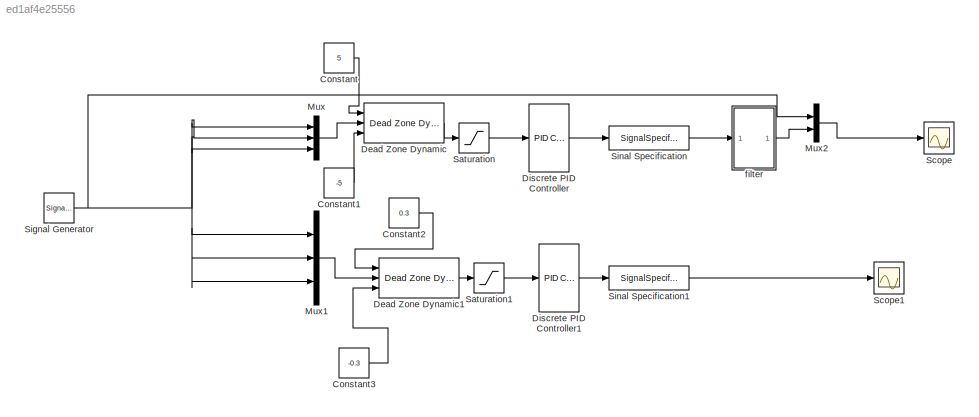
MODEL slx_ed1af4e25556
KIND model
CONFIG AbsTol = auto
CONFIG EnableMultiTasking = off
CONFIG FixedStep = 0.002
CONFIG MaxStep = auto
CONFIG MinStep = auto
CONFIG RelTol = 1e-3
CONFIG SampleTimeConstraint = Unconstrained
CONFIG Solver = FixedStepDiscrete
CONFIG SolverName = FixedStepDiscrete
CONFIG StartTime = 0.0
CONFIG StopTime = 10
BLOCK [Constant] Constant
  Value = 5
BLOCK [Constant] Constant1
  Value = -5
BLOCK [Constant] Constant2
  Value = 0.3
BLOCK [Constant] Constant3
  Value = -0.3
BLOCK [Reference] Dead Zone Dynamic  REF=simulink/Discontinuities/Dead Zone
Dynamic
  Ports = [3, 1]
  SourceBlock = simulink/Discontinuities/Dead Zone\nDynamic
  SourceType = Dead Zone Dynamic
BLOCK [Reference] Dead Zone Dynamic1  REF=simulink/Discontinuities/Dead Zone
Dynamic
  Ports = [3, 1]
  SourceBlock = simulink/Discontinuities/Dead Zone\nDynamic
  SourceType = Dead Zone Dynamic
BLOCK [Reference] Discrete PID Controller  REF=simulink/Continuous/PID Controller
  Ports = [1, 1]
  SourceBlock = simulink/Continuous/PID Controller
  SourceType = PID 1dof
BLOCK [Reference] Discrete PID Controller1  REF=simulink/Continuous/PID Controller
  Ports = [1, 1]
  SourceBlock = simulink/Continuous/PID Controller
  SourceType = PID 1dof
BLOCK [Mux] Mux
  DisplayOption = bar
  Inputs = 3
  Ports = [3, 1]
BLOCK [Mux] Mux1
  DisplayOption = bar
  Inputs = 3
  Ports = [3, 1]
BLOCK [Mux] Mux2
  DisplayOption = bar
  Inputs = 2
  Ports = [2, 1]
BLOCK [Saturate] Saturation
  InputPortMap = u0
  LowerLimit = -40
  Ports = [1, 1]
  UpperLimit = 40
BLOCK [Saturate] Saturation1
  InputPortMap = u0
  LowerLimit = -3
  Ports = [1, 1]
  UpperLimit = 3
BLOCK [Scope] Scope
  NumInputPorts = 1
  Ports = [1]
  ScopeSpecificationString = Simulink.scopes.TimeScopeBlockCfg('CurrentConfiguration', extmgr.ConfigurationSet(extmgr.Configuration('Core','General UI',true),extmgr.Configuration('Core','Source UI',true),extmgr.Configuration('Sources','WiredSimulink',true),extmgr.Configuration('Visuals','Time Domain',true,'SerializedDisplays',{struct('MinYLimReal','-12.5','MaxYLimReal','12.5','YLabelReal','','MinYLimMag','0.00000','MaxYLimMag...<+1465ch>
BLOCK [Scope] Scope1
  NumInputPorts = 1
  Ports = [1]
  ScopeSpecificationString = Simulink.scopes.TimeScopeBlockCfg('CurrentConfiguration', extmgr.ConfigurationSet(extmgr.Configuration('Core','General UI',true),extmgr.Configuration('Core','Source UI',true),extmgr.Configuration('Sources','WiredSimulink',true,'DataLoggingVariableName','ScopeData1'),extmgr.Configuration('Visuals','Time Domain',true,'SerializedDisplays',{struct('MinYLimReal','-12.5','MaxYLimReal','12.5','YLabelReal...<+1504ch>
BLOCK [SignalGenerator] Signal Generator
  Amplitude = 10
  Ports = [0, 1]
  Units = rad/sec
  WaveForm = square
BLOCK [SignalSpecification] Sinal Specification
  Dimensions = 3
  OutDataTypeStr = double
BLOCK [SignalSpecification] Sinal Specification1
  Dimensions = 3
  OutDataTypeStr = double
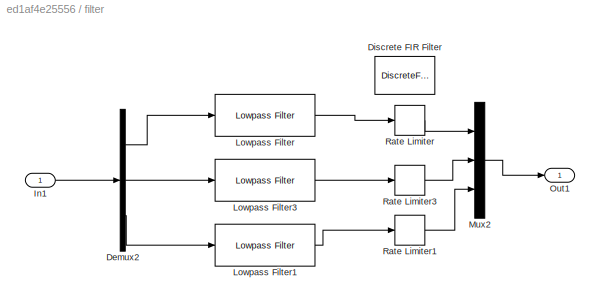
BLOCK [SubSystem] filter
  Ports = [1, 1]
  RequestExecContextInheritance = off
  Variant = off
BLOCK [Demux] filter/Demux2
  DisplayOption = bar
  Outputs = 3
  Ports = [1, 3]
BLOCK [DiscreteFir] filter/Discrete FIR Filter
  InputPortMap = u0
  OutputPortMap = o0
  Ports = [1, 1]
BLOCK [Inport] filter/In1
  IconDisplay = Port number
BLOCK [Reference] filter/Lowpass Filter  REF=dspfdesign/Lowpass Filter
  Ports = [1, 1]
  SourceBlock = dspfdesign/Lowpass Filter
  SourceType = dsp.LowpassFilter
BLOCK [Reference] filter/Lowpass Filter1  REF=dspfdesign/Lowpass Filter
  Ports = [1, 1]
  SourceBlock = dspfdesign/Lowpass Filter
  SourceType = dsp.LowpassFilter
BLOCK [Reference] filter/Lowpass Filter3  REF=dspfdesign/Lowpass Filter
  Ports = [1, 1]
  SourceBlock = dspfdesign/Lowpass Filter
  SourceType = dsp.LowpassFilter
BLOCK [Mux] filter/Mux2
  DisplayOption = bar
  Inputs = 3
  Ports = [3, 1]
BLOCK [Outport] filter/Out1
  IconDisplay = Port number
BLOCK [RateLimiter] filter/Rate Limiter
  FallingSlewLimit = -200
  RisingSlewLimit = 200
  SampleTimeMode = inherited
BLOCK [RateLimiter] filter/Rate Limiter1
  FallingSlewLimit = -200
  RisingSlewLimit = 200
  SampleTimeMode = inherited
BLOCK [RateLimiter] filter/Rate Limiter3
  FallingSlewLimit = -200
  RisingSlewLimit = 200
  SampleTimeMode = inherited
LINE Constant1:1 -> Dead Zone Dynamic:3
LINE Constant2:1 -> Dead Zone Dynamic1:1
LINE Constant3:1 -> Dead Zone Dynamic1:3
LINE Constant:1 -> Dead Zone Dynamic:1
LINE Dead Zone Dynamic1:1 -> Saturation1:1
LINE Dead Zone Dynamic:1 -> Saturation:1
LINE Discrete PID Controller1:1 -> Sinal Specification1:1
LINE Discrete PID Controller:1 -> Sinal Specification:1
LINE Mux1:1 -> Dead Zone Dynamic1:2
LINE Mux2:1 -> Scope:1
LINE Mux:1 -> Dead Zone Dynamic:2
LINE Saturation1:1 -> Discrete PID Controller1:1
LINE Saturation:1 -> Discrete PID Controller:1
NET Signal Generator:1 -> Mux1:1, Mux1:2, Mux1:3, Mux2:1, Mux:1, Mux:2, Mux:3
LINE Sinal Specification1:1 -> Scope1:1
LINE Sinal Specification:1 -> filter:1
LINE filter/Demux2:1 -> filter/Lowpass Filter:1
LINE filter/Demux2:2 -> filter/Lowpass Filter3:1
LINE filter/Demux2:3 -> filter/Lowpass Filter1:1
LINE filter/In1:1 -> filter/Demux2:1
LINE filter/Lowpass Filter1:1 -> filter/Rate Limiter1:1
LINE filter/Lowpass Filter3:1 -> filter/Rate Limiter3:1
LINE filter/Lowpass Filter:1 -> filter/Rate Limiter:1
LINE filter/Mux2:1 -> filter/Out1:1
LINE filter/Rate Limiter1:1 -> filter/Mux2:3
LINE filter/Rate Limiter3:1 -> filter/Mux2:2
LINE filter/Rate Limiter:1 -> filter/Mux2:1
LINE filter:1 -> Mux2:2
note: NET lines group one-source signal fan-out (src -> all destinations, sorted); 1:1 wires keep LINE
